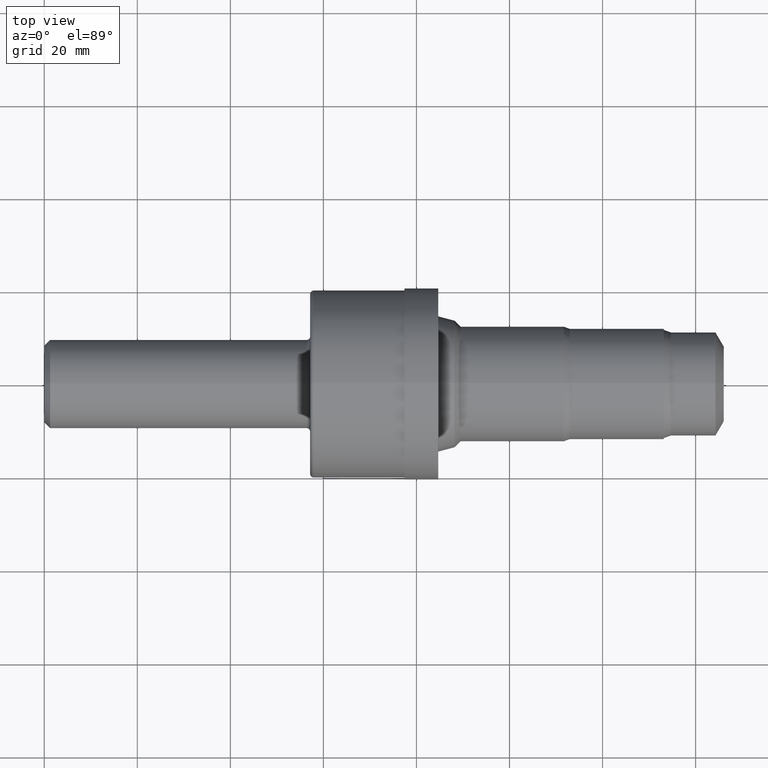
[diagram: clean part render]
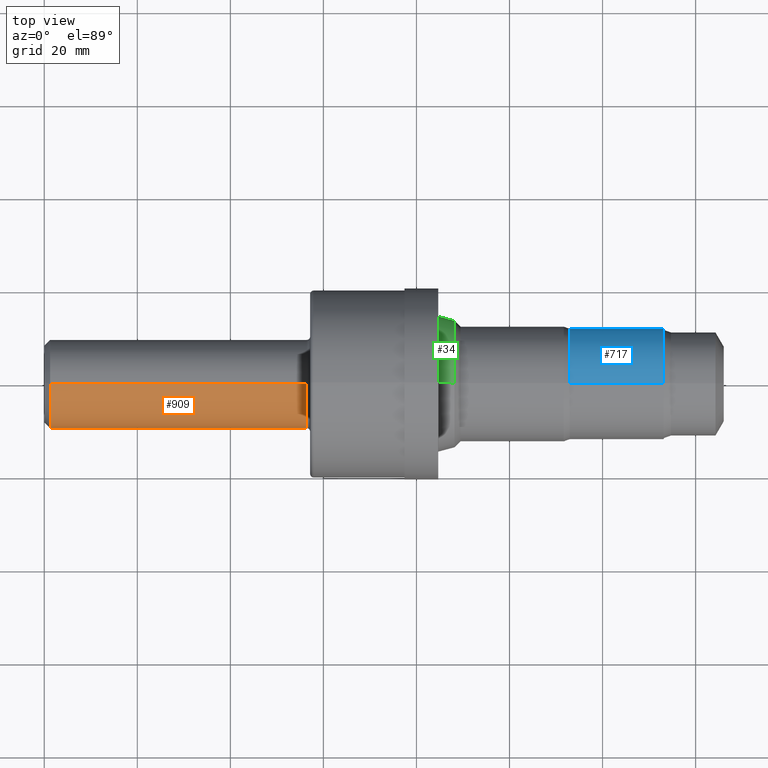
[diagram: same view with three faces highlighted in distinct colors, each labeled with its STEP entity id]
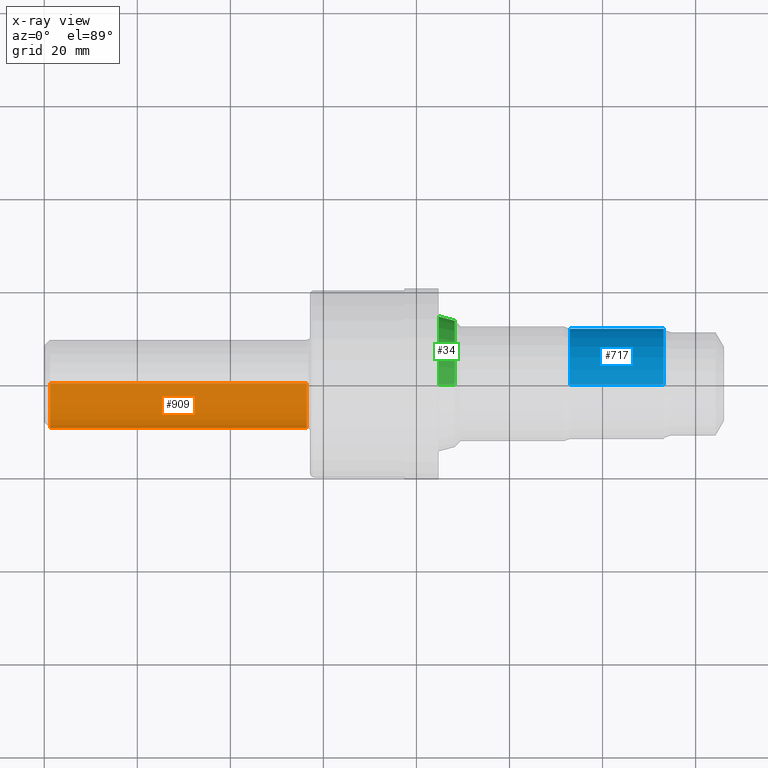
[diagram: x-ray of the same camera — body ghosted, the three highlighted faces saturated]
A machine part, top view with three faces highlighted in distinct colors.
The next image is the same camera in x-ray (body ghosted, the three faces saturated) — at least one of them is partly hidden behind the body in this view.
Their STEP definitions:

[orange] entity #909 — the highlighted cylindrical surface (partial cylindrical patch) has radius 9.5212 mm, axis along (-1, -0, -0).
#7 = LINE ( 'NONE', #754, #965 ) ;
#8 = DIRECTION ( 'NONE',  ( -1.000000000000000000, -0.0000000000000000000, -0.0000000000000000000 ) ) ;
#57 = VERTEX_POINT ( 'NONE', #620 ) ;
#70 = CARTESIAN_POINT ( 'NONE',  ( 0.0000000000000000000, 4.590588526603858678E-17, -0.3748500000000003496 ) ) ;
#93 = CARTESIAN_POINT ( 'NONE',  ( 2.220000000000000195, 0.0000000000000000000, 0.0000000000000000000 ) ) ;
#128 = VERTEX_POINT ( 'NONE', #555 ) ;
#140 = LINE ( 'NONE', #70, #782 ) ;
#180 = CIRCLE ( 'NONE', #742, 0.3748500000000000165 ) ;
#301 = ORIENTED_EDGE ( 'NONE', *, *, #734, .F. ) ;
#305 = FACE_OUTER_BOUND ( 'NONE', #360, .T. ) ;
#344 = DIRECTION ( 'NONE',  ( 0.0000000000000000000, 0.0000000000000000000, 1.000000000000000000 ) ) ;
#360 = EDGE_LOOP ( 'NONE', ( #301, #686, #793, #915 ) ) ;
#446 = CARTESIAN_POINT ( 'NONE',  ( 2.220000000000000195, 0.0000000000000000000, 0.3748500000000006271 ) ) ;
#493 = EDGE_CURVE ( 'NONE', #57, #757, #180, .T. ) ;
#555 = CARTESIAN_POINT ( 'NONE',  ( 2.220000000000000195, 4.774285546475963718E-17, -0.3748500000000006271 ) ) ;
#575 = CARTESIAN_POINT ( 'NONE',  ( 0.0000000000000000000, 0.0000000000000000000, 0.0000000000000000000 ) ) ;
#579 = DIRECTION ( 'NONE',  ( 0.0000000000000000000, 0.0000000000000000000, 1.000000000000000000 ) ) ;
#620 = CARTESIAN_POINT ( 'NONE',  ( 0.05000000000000000278, 4.590588526603856213E-17, -0.3748500000000000165 ) ) ;
#624 = CIRCLE ( 'NONE', #671, 0.3748500000000006271 ) ;
#635 = CYLINDRICAL_SURFACE ( 'NONE', #845, 0.3748500000000003496 ) ;
#671 = AXIS2_PLACEMENT_3D ( 'NONE', #93, #912, #929 ) ;
#686 = ORIENTED_EDGE ( 'NONE', *, *, #803, .T. ) ;
#734 = EDGE_CURVE ( 'NONE', #128, #57, #140, .T. ) ;
#740 = DIRECTION ( 'NONE',  ( -1.000000000000000000, -0.0000000000000000000, -0.0000000000000000000 ) ) ;
#742 = AXIS2_PLACEMENT_3D ( 'NONE', #755, #740, #579 ) ;
#751 = EDGE_CURVE ( 'NONE', #815, #757, #7, .T. ) ;
#754 = CARTESIAN_POINT ( 'NONE',  ( 0.0000000000000000000, 0.0000000000000000000, 0.3748500000000003496 ) ) ;
#755 = CARTESIAN_POINT ( 'NONE',  ( 0.05000000000000000278, 0.0000000000000000000, 0.0000000000000000000 ) ) ;
#757 = VERTEX_POINT ( 'NONE', #902 ) ;
#782 = VECTOR ( 'NONE', #783, 39.37007874015748143 ) ;
#783 = DIRECTION ( 'NONE',  ( -1.000000000000000000, -0.0000000000000000000, -0.0000000000000000000 ) ) ;
#793 = ORIENTED_EDGE ( 'NONE', *, *, #751, .T. ) ;
#803 = EDGE_CURVE ( 'NONE', #128, #815, #624, .T. ) ;
#815 = VERTEX_POINT ( 'NONE', #446 ) ;
#845 = AXIS2_PLACEMENT_3D ( 'NONE', #575, #881, #344 ) ;
#881 = DIRECTION ( 'NONE',  ( -1.000000000000000000, -0.0000000000000000000, -0.0000000000000000000 ) ) ;
#902 = CARTESIAN_POINT ( 'NONE',  ( 0.05000000000000000278, 0.0000000000000000000, 0.3748500000000000165 ) ) ;
#909 = ADVANCED_FACE ( 'NONE', ( #305 ), #635, .T. ) ;
#912 = DIRECTION ( 'NONE',  ( -1.000000000000000000, -0.0000000000000000000, -0.0000000000000000000 ) ) ;
#915 = ORIENTED_EDGE ( 'NONE', *, *, #493, .F. ) ;
#929 = DIRECTION ( 'NONE',  ( 0.0000000000000000000, 0.0000000000000000000, 1.000000000000000000 ) ) ;
#965 = VECTOR ( 'NONE', #8, 39.37007874015748143 ) ;

[blue] entity #717 — the highlighted cylindrical surface (partial cylindrical patch) has radius 11.9101 mm, axis along (-1, -0, -0).
#38 = FACE_OUTER_BOUND ( 'NONE', #385, .T. ) ;
#42 = CIRCLE ( 'NONE', #326, 0.4689000000000000390 ) ;
#53 = ORIENTED_EDGE ( 'NONE', *, *, #158, .F. ) ;
#55 = VERTEX_POINT ( 'NONE', #226 ) ;
#67 = VECTOR ( 'NONE', #425, 39.37007874015748143 ) ;
#88 = LINE ( 'NONE', #564, #67 ) ;
#130 = EDGE_CURVE ( 'NONE', #865, #55, #88, .T. ) ;
#158 = EDGE_CURVE ( 'NONE', #55, #244, #42, .T. ) ;
#196 = CARTESIAN_POINT ( 'NONE',  ( 4.447103080001856057, 5.742368841201939169E-17, -0.4689000000000000390 ) ) ;
#206 = CYLINDRICAL_SURFACE ( 'NONE', #704, 0.4689000000000000390 ) ;
#226 = CARTESIAN_POINT ( 'NONE',  ( 4.447103080001856057, 0.0000000000000000000, 0.4689000000000000390 ) ) ;
#238 = CARTESIAN_POINT ( 'NONE',  ( 5.241999999999999105, 0.0000000000000000000, 0.4689000000000000390 ) ) ;
#244 = VERTEX_POINT ( 'NONE', #196 ) ;
#270 = CARTESIAN_POINT ( 'NONE',  ( 0.0000000000000000000, 5.742368841201939169E-17, -0.4689000000000000390 ) ) ;
#291 = DIRECTION ( 'NONE',  ( 0.0000000000000000000, 0.0000000000000000000, 1.000000000000000000 ) ) ;
#307 = DIRECTION ( 'NONE',  ( -1.000000000000000000, -0.0000000000000000000, -0.0000000000000000000 ) ) ;
#326 = AXIS2_PLACEMENT_3D ( 'NONE', #875, #795, #936 ) ;
#383 = ORIENTED_EDGE ( 'NONE', *, *, #130, .F. ) ;
#385 = EDGE_LOOP ( 'NONE', ( #786, #896, #53, #383 ) ) ;
#425 = DIRECTION ( 'NONE',  ( -1.000000000000000000, -0.0000000000000000000, -0.0000000000000000000 ) ) ;
#471 = DIRECTION ( 'NONE',  ( -1.000000000000000000, -0.0000000000000000000, -0.0000000000000000000 ) ) ;
#564 = CARTESIAN_POINT ( 'NONE',  ( 0.0000000000000000000, 0.0000000000000000000, 0.4689000000000000390 ) ) ;
#577 = DIRECTION ( 'NONE',  ( -1.000000000000000000, -0.0000000000000000000, -0.0000000000000000000 ) ) ;
#626 = CARTESIAN_POINT ( 'NONE',  ( 0.0000000000000000000, 0.0000000000000000000, 0.0000000000000000000 ) ) ;
#634 = CARTESIAN_POINT ( 'NONE',  ( 5.241999999999999105, 5.742368841201939169E-17, -0.4689000000000000390 ) ) ;
#660 = VERTEX_POINT ( 'NONE', #634 ) ;
#704 = AXIS2_PLACEMENT_3D ( 'NONE', #626, #471, #771 ) ;
#717 = ADVANCED_FACE ( 'NONE', ( #38 ), #206, .T. ) ;
#724 = AXIS2_PLACEMENT_3D ( 'NONE', #831, #307, #291 ) ;
#753 = CIRCLE ( 'NONE', #724, 0.4689000000000000390 ) ;
#761 = EDGE_CURVE ( 'NONE', #865, #660, #753, .T. ) ;
#771 = DIRECTION ( 'NONE',  ( 0.0000000000000000000, 0.0000000000000000000, 1.000000000000000000 ) ) ;
#786 = ORIENTED_EDGE ( 'NONE', *, *, #761, .T. ) ;
#795 = DIRECTION ( 'NONE',  ( -1.000000000000000000, -0.0000000000000000000, -0.0000000000000000000 ) ) ;
#831 = CARTESIAN_POINT ( 'NONE',  ( 5.241999999999999105, 0.0000000000000000000, 0.0000000000000000000 ) ) ;
#858 = LINE ( 'NONE', #270, #890 ) ;
#865 = VERTEX_POINT ( 'NONE', #238 ) ;
#875 = CARTESIAN_POINT ( 'NONE',  ( 4.447103080001856057, 0.0000000000000000000, 0.0000000000000000000 ) ) ;
#890 = VECTOR ( 'NONE', #577, 39.37007874015748143 ) ;
#896 = ORIENTED_EDGE ( 'NONE', *, *, #907, .T. ) ;
#907 = EDGE_CURVE ( 'NONE', #660, #244, #858, .T. ) ;
#936 = DIRECTION ( 'NONE',  ( 0.0000000000000000000, 0.0000000000000000000, 1.000000000000000000 ) ) ;

[green] entity #34 — the highlighted conical surface has half-angle 15 deg.
#13 = CARTESIAN_POINT ( 'NONE',  ( 3.339558857161730288, 7.026539704721338572E-17, -0.5737605087126745884 ) ) ;
#17 = EDGE_CURVE ( 'NONE', #283, #824, #340, .T. ) ;
#34 = ADVANCED_FACE ( 'NONE', ( #319 ), #290, .T. ) ;
#43 = CARTESIAN_POINT ( 'NONE',  ( 3.471999999999999531, 0.0000000000000000000, 0.5382730114445050118 ) ) ;
#62 = CIRCLE ( 'NONE', #83, 0.5382730114445050118 ) ;
#78 = CIRCLE ( 'NONE', #167, 0.5737605087126745884 ) ;
#83 = AXIS2_PLACEMENT_3D ( 'NONE', #762, #748, #687 ) ;
#100 = VERTEX_POINT ( 'NONE', #772 ) ;
#127 = LINE ( 'NONE', #930, #480 ) ;
#155 = VECTOR ( 'NONE', #500, 39.37007874015748854 ) ;
#167 = AXIS2_PLACEMENT_3D ( 'NONE', #690, #352, #619 ) ;
#202 = AXIS2_PLACEMENT_3D ( 'NONE', #209, #963, #429 ) ;
#209 = CARTESIAN_POINT ( 'NONE',  ( 3.471999999999999531, 0.0000000000000000000, 0.0000000000000000000 ) ) ;
#283 = VERTEX_POINT ( 'NONE', #864 ) ;
#290 = CONICAL_SURFACE ( 'NONE', #202, 0.5382730114445050118, 0.2617993877991525720 ) ;
#319 = FACE_OUTER_BOUND ( 'NONE', #832, .T. ) ;
#322 = DIRECTION ( 'NONE',  ( -0.9659258262890675351, 0.0000000000000000000, 0.2588190451025237926 ) ) ;
#340 = LINE ( 'NONE', #588, #155 ) ;
#352 = DIRECTION ( 'NONE',  ( -1.000000000000000000, -0.0000000000000000000, -0.0000000000000000000 ) ) ;
#429 = DIRECTION ( 'NONE',  ( 0.0000000000000000000, 0.0000000000000000000, 1.000000000000000000 ) ) ;
#480 = VECTOR ( 'NONE', #322, 39.37007874015748854 ) ;
#500 = DIRECTION ( 'NONE',  ( -0.9659258262890675351, 3.169619151431801919E-17, -0.2588190451025237926 ) ) ;
#588 = CARTESIAN_POINT ( 'NONE',  ( 3.471999999999999531, 6.591943205329196732E-17, -0.5382730114445050118 ) ) ;
#605 = VERTEX_POINT ( 'NONE', #43 ) ;
#619 = DIRECTION ( 'NONE',  ( 0.0000000000000000000, 0.0000000000000000000, 1.000000000000000000 ) ) ;
#687 = DIRECTION ( 'NONE',  ( 0.0000000000000000000, 0.0000000000000000000, 1.000000000000000000 ) ) ;
#690 = CARTESIAN_POINT ( 'NONE',  ( 3.339558857161730288, 0.0000000000000000000, 0.0000000000000000000 ) ) ;
#728 = EDGE_CURVE ( 'NONE', #605, #283, #62, .T. ) ;
#748 = DIRECTION ( 'NONE',  ( -1.000000000000000000, -0.0000000000000000000, -0.0000000000000000000 ) ) ;
#762 = CARTESIAN_POINT ( 'NONE',  ( 3.471999999999999531, 0.0000000000000000000, 0.0000000000000000000 ) ) ;
#772 = CARTESIAN_POINT ( 'NONE',  ( 3.339558857161730288, 0.0000000000000000000, 0.5737605087126745884 ) ) ;
#773 = ORIENTED_EDGE ( 'NONE', *, *, #17, .T. ) ;
#824 = VERTEX_POINT ( 'NONE', #13 ) ;
#832 = EDGE_LOOP ( 'NONE', ( #866, #773, #925, #908 ) ) ;
#864 = CARTESIAN_POINT ( 'NONE',  ( 3.471999999999999531, 6.591943205329196732E-17, -0.5382730114445050118 ) ) ;
#866 = ORIENTED_EDGE ( 'NONE', *, *, #728, .T. ) ;
#871 = EDGE_CURVE ( 'NONE', #605, #100, #127, .T. ) ;
#908 = ORIENTED_EDGE ( 'NONE', *, *, #871, .F. ) ;
#925 = ORIENTED_EDGE ( 'NONE', *, *, #932, .F. ) ;
#930 = CARTESIAN_POINT ( 'NONE',  ( 3.471999999999999531, 0.0000000000000000000, 0.5382730114445050118 ) ) ;
#932 = EDGE_CURVE ( 'NONE', #100, #824, #78, .T. ) ;
#963 = DIRECTION ( 'NONE',  ( -1.000000000000000000, -0.0000000000000000000, -0.0000000000000000000 ) ) ;